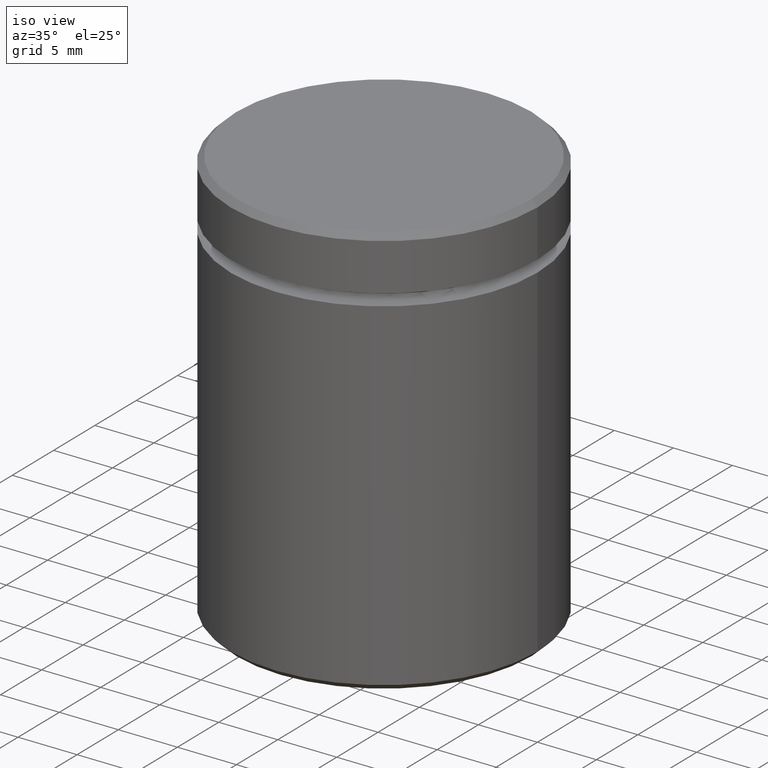
[diagram: clean part render]
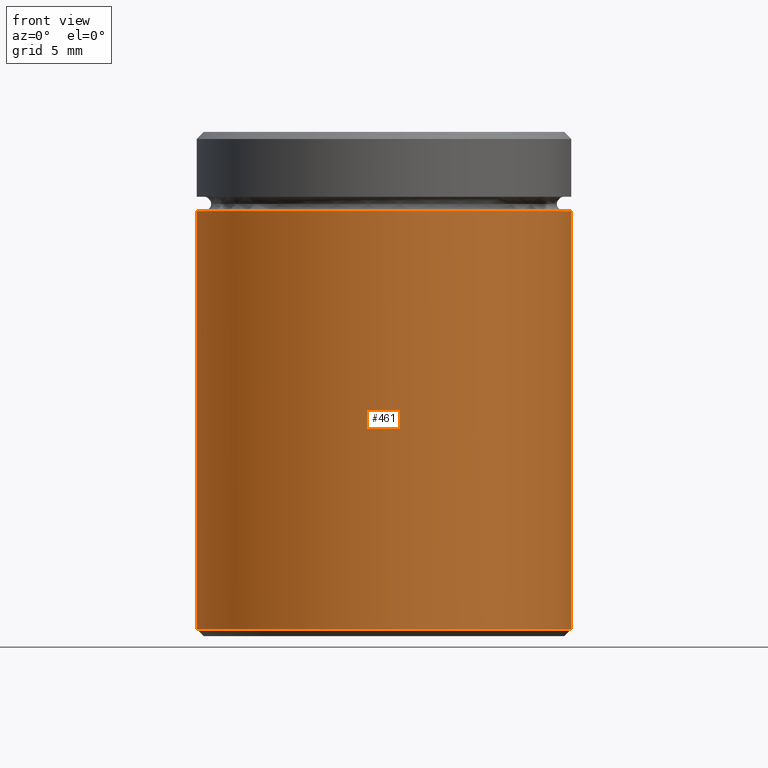
[diagram: tour spotlight — one face highlighted and labeled with its STEP entity id]
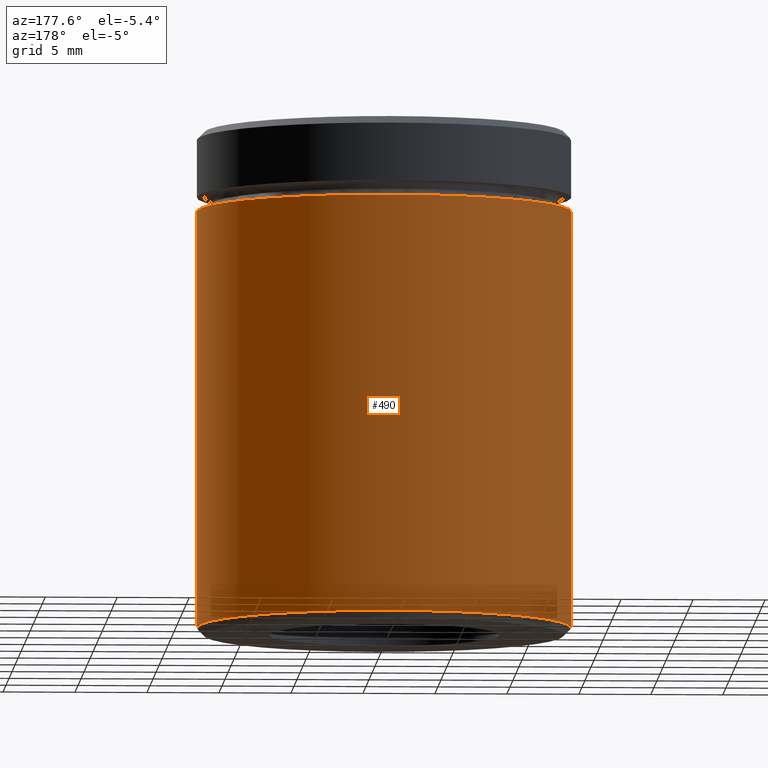
[diagram: tour spotlight — one face highlighted and labeled with its STEP entity id]
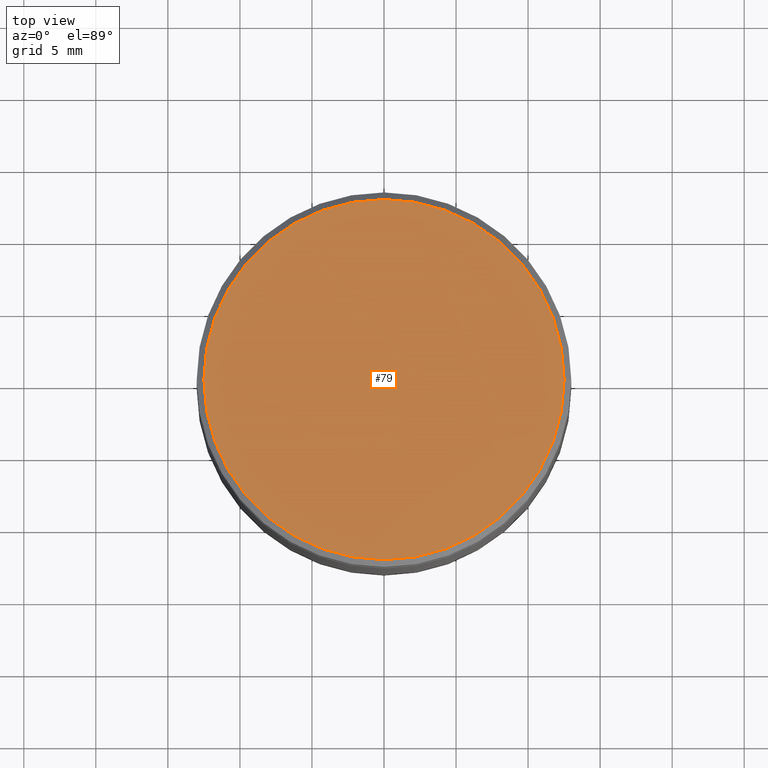
[diagram: tour spotlight — one face highlighted and labeled with its STEP entity id]
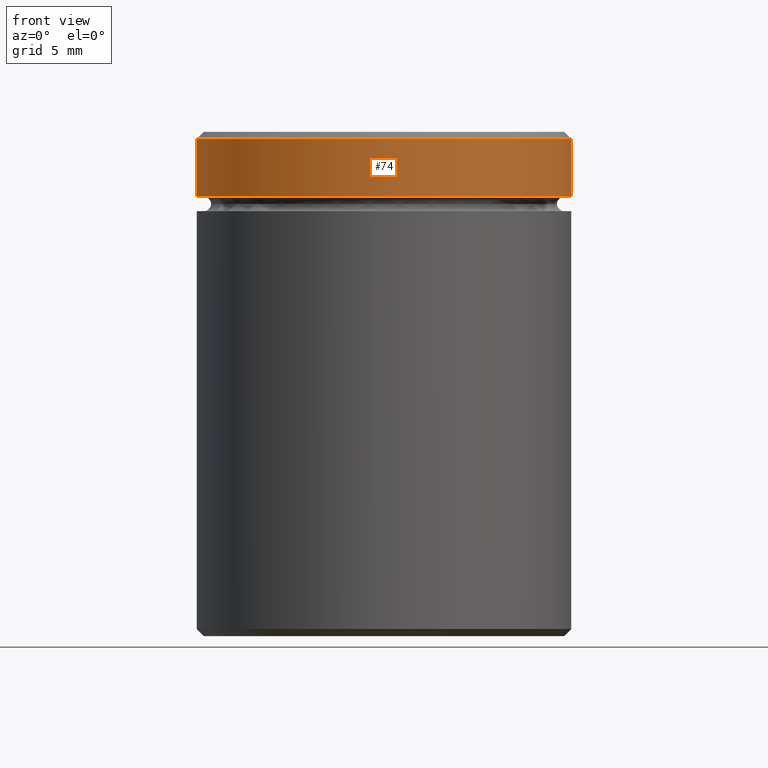
[diagram: tour spotlight — one face highlighted and labeled with its STEP entity id]
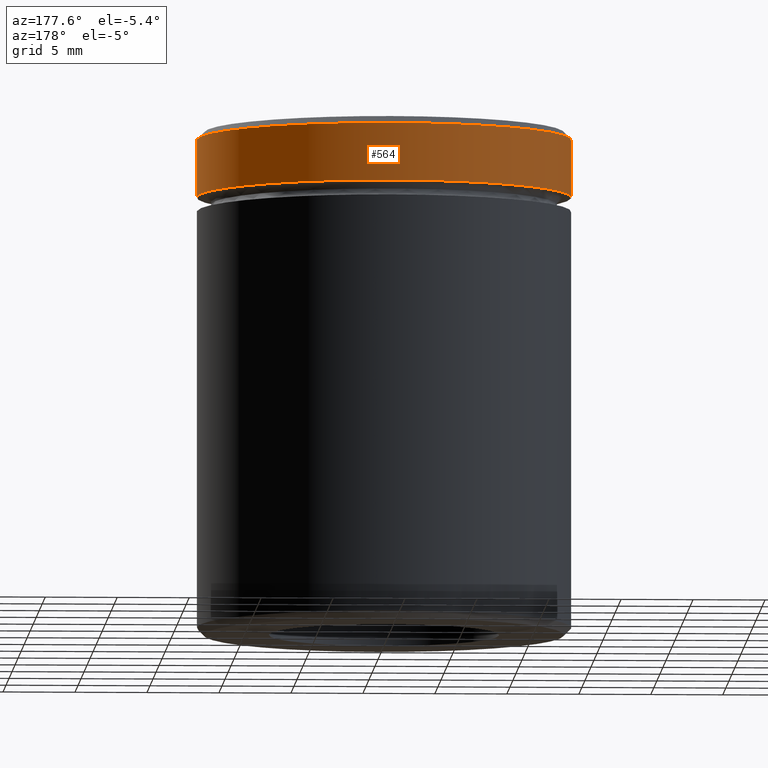
[diagram: tour spotlight — one face highlighted and labeled with its STEP entity id]
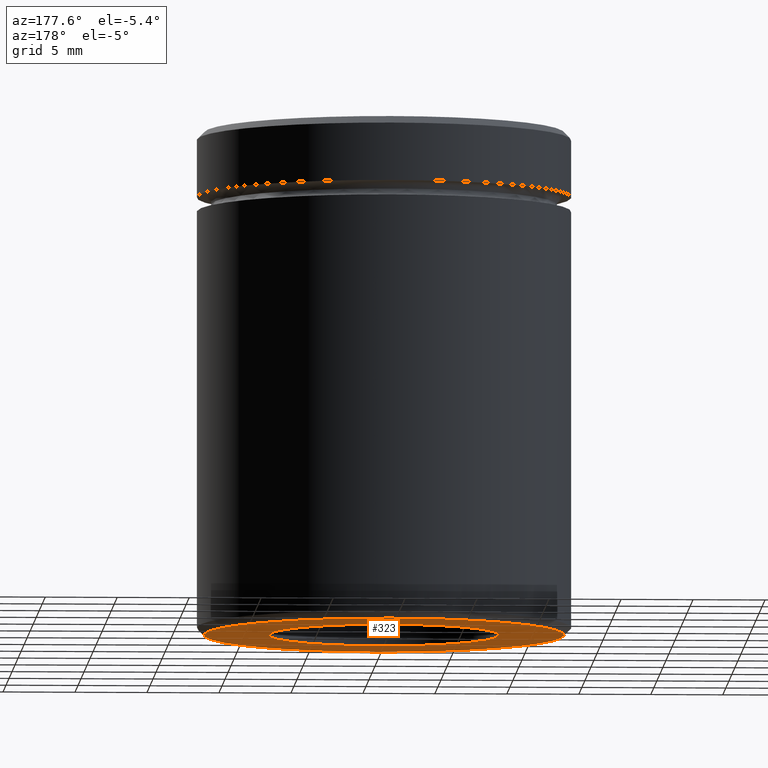
[diagram: tour spotlight — one face highlighted and labeled with its STEP entity id]
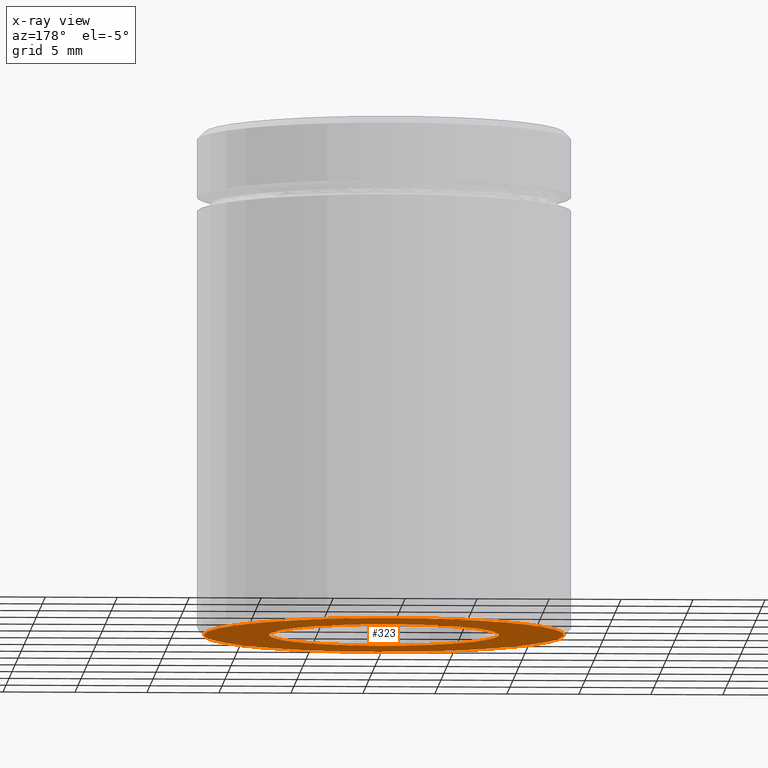
[diagram: x-ray of the same camera — body ghosted, this tour face saturated]
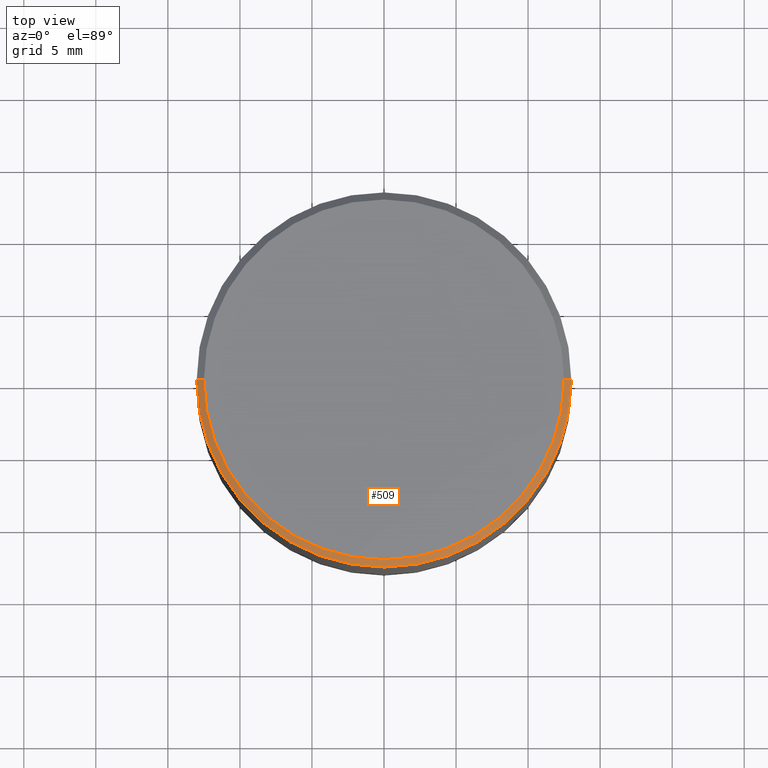
[diagram: tour spotlight — one face highlighted and labeled with its STEP entity id]
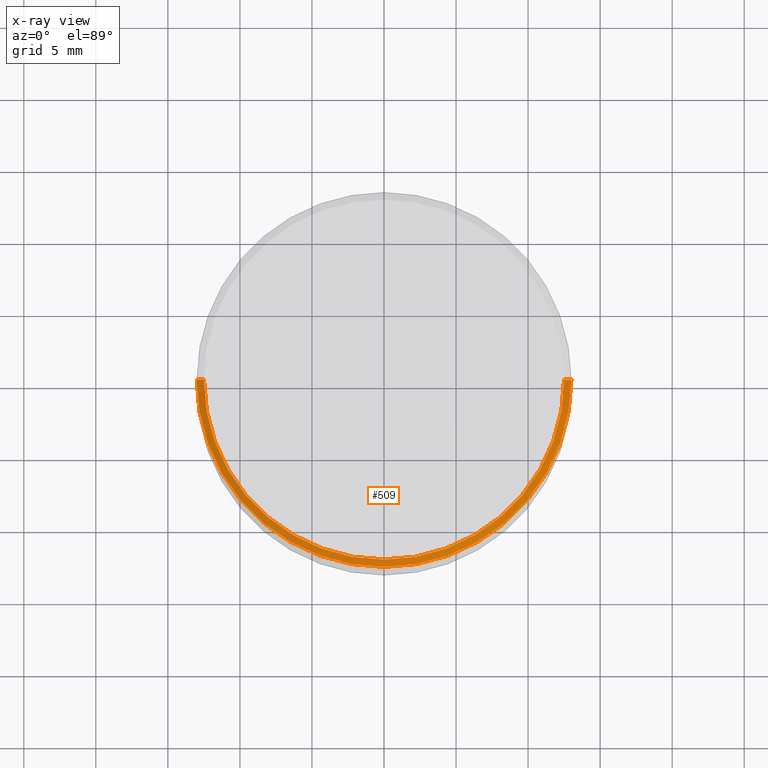
[diagram: x-ray of the same camera — body ghosted, this tour face saturated]
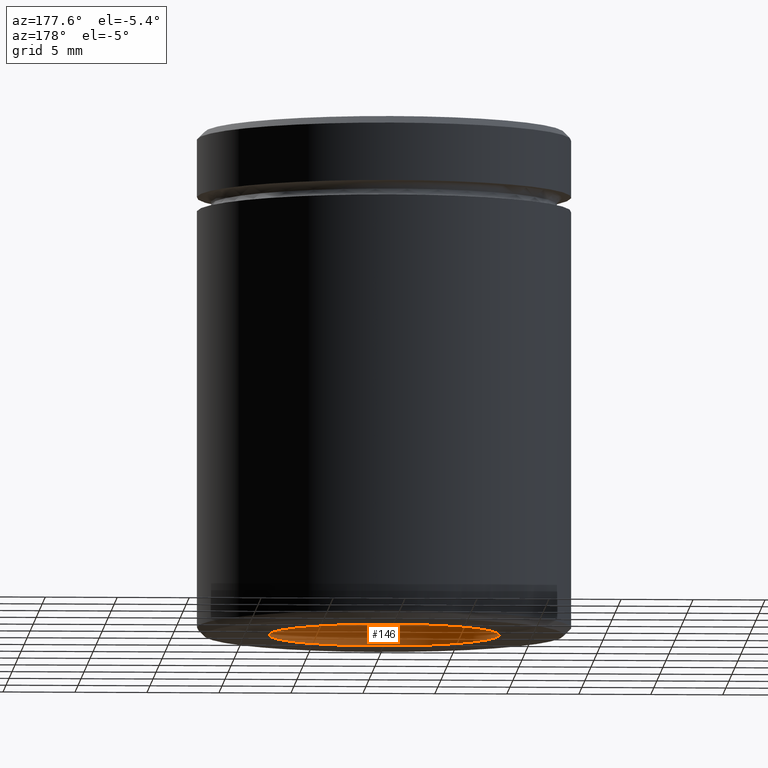
[diagram: tour spotlight — one face highlighted and labeled with its STEP entity id]
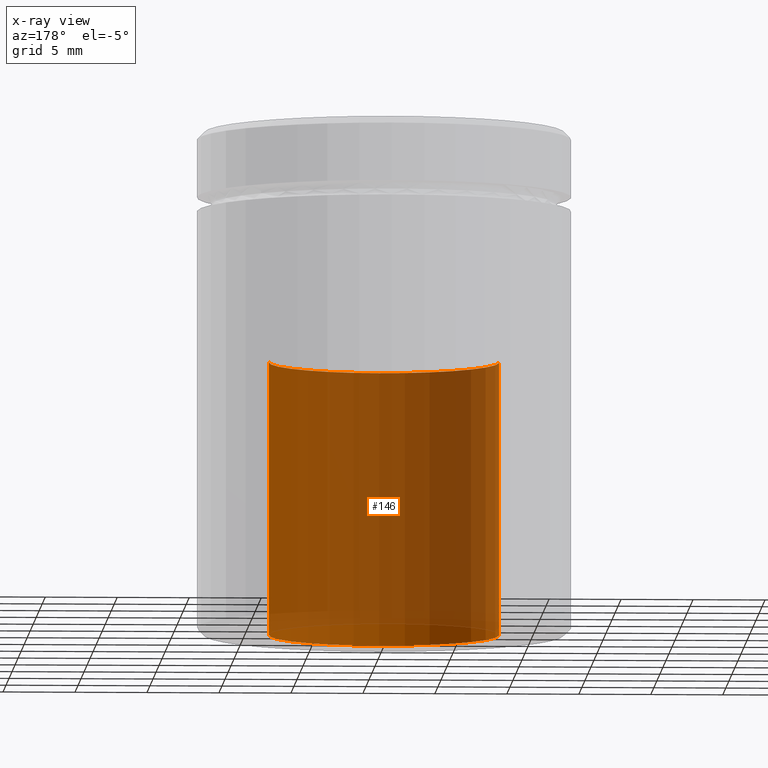
[diagram: x-ray of the same camera — body ghosted, this tour face saturated]
A machine part: a face-by-face anatomy tour. The part has 19 B-rep faces; the first image is the clean iso view, then the 8 largest visible faces are spotlighted one at a time (largest first), each with its STEP entity span.

Face 1 — front view, entity #461. In plain terms, the highlighted cylindrical surface (partial cylindrical patch) has radius 13 mm, axis along (-0, -0, 1).
Definition (entity closure, byte-faithful):
#14 = DIRECTION ( 'NONE',  ( -0.000000000000000000, -0.000000000000000000, 1.000000000000000000 ) ) ;
#18 = VERTEX_POINT ( 'NONE', #179 ) ;
#35 = CARTESIAN_POINT ( 'NONE',  ( 13.00000000000000000, 0.000000000000000000, -5.500000000000000000 ) ) ;
#37 = ORIENTED_EDGE ( 'NONE', *, *, #216, .F. ) ;
#43 = FACE_OUTER_BOUND ( 'NONE', #443, .T. ) ;
#124 = AXIS2_PLACEMENT_3D ( 'NONE', #289, #192, #152 ) ;
#129 = VECTOR ( 'NONE', #14, 1000.000000000000000 ) ;
#152 = DIRECTION ( 'NONE',  ( -1.000000000000000000, 0.000000000000000000, 0.000000000000000000 ) ) ;
#164 = CARTESIAN_POINT ( 'NONE',  ( -13.00000000000000000, 1.592040838891559095E-15, -5.500000000000000000 ) ) ;
#170 = VECTOR ( 'NONE', #300, 1000.000000000000000 ) ;
#179 = CARTESIAN_POINT ( 'NONE',  ( 13.00000000000000000, 0.000000000000000000, -34.49999999999999289 ) ) ;
#186 = LINE ( 'NONE', #455, #129 ) ;
#192 = DIRECTION ( 'NONE',  ( -0.000000000000000000, -0.000000000000000000, 1.000000000000000000 ) ) ;
#207 = ORIENTED_EDGE ( 'NONE', *, *, #333, .T. ) ;
#215 = DIRECTION ( 'NONE',  ( -0.000000000000000000, -0.000000000000000000, 1.000000000000000000 ) ) ;
#216 = EDGE_CURVE ( 'NONE', #390, #530, #425, .T. ) ;
#220 = CARTESIAN_POINT ( 'NONE',  ( 0.000000000000000000, 0.000000000000000000, -5.500000000000000000 ) ) ;
#224 = VERTEX_POINT ( 'NONE', #388 ) ;
#236 = AXIS2_PLACEMENT_3D ( 'NONE', #311, #271, #319 ) ;
#257 = EDGE_CURVE ( 'NONE', #224, #390, #430, .T. ) ;
#271 = DIRECTION ( 'NONE',  ( -0.000000000000000000, -0.000000000000000000, 1.000000000000000000 ) ) ;
#289 = CARTESIAN_POINT ( 'NONE',  ( 0.000000000000000000, 0.000000000000000000, -34.49999999999999289 ) ) ;
#299 = AXIS2_PLACEMENT_3D ( 'NONE', #220, #215, #532 ) ;
#300 = DIRECTION ( 'NONE',  ( -0.000000000000000000, -0.000000000000000000, 1.000000000000000000 ) ) ;
#311 = CARTESIAN_POINT ( 'NONE',  ( 0.000000000000000000, 0.000000000000000000, 0.000000000000000000 ) ) ;
#319 = DIRECTION ( 'NONE',  ( 1.000000000000000000, 0.000000000000000000, 0.000000000000000000 ) ) ;
#333 = EDGE_CURVE ( 'NONE', #18, #530, #186, .T. ) ;
#380 = CIRCLE ( 'NONE', #124, 13.00000000000000000 ) ;
#388 = CARTESIAN_POINT ( 'NONE',  ( -13.00000000000000000, 1.592040838891559095E-15, -34.49999999999999289 ) ) ;
#390 = VERTEX_POINT ( 'NONE', #164 ) ;
#425 = CIRCLE ( 'NONE', #299, 13.00000000000000000 ) ;
#430 = LINE ( 'NONE', #562, #170 ) ;
#443 = EDGE_LOOP ( 'NONE', ( #520, #444, #207, #37 ) ) ;
#444 = ORIENTED_EDGE ( 'NONE', *, *, #479, .T. ) ;
#452 = CYLINDRICAL_SURFACE ( 'NONE', #236, 13.00000000000000000 ) ;
#455 = CARTESIAN_POINT ( 'NONE',  ( 13.00000000000000000, 0.000000000000000000, 0.000000000000000000 ) ) ;
#461 = ADVANCED_FACE ( 'NONE', ( #43 ), #452, .T. ) ;
#479 = EDGE_CURVE ( 'NONE', #224, #18, #380, .T. ) ;
#520 = ORIENTED_EDGE ( 'NONE', *, *, #257, .F. ) ;
#530 = VERTEX_POINT ( 'NONE', #35 ) ;
#532 = DIRECTION ( 'NONE',  ( 1.000000000000000000, 0.000000000000000000, 0.000000000000000000 ) ) ;
#562 = CARTESIAN_POINT ( 'NONE',  ( -13.00000000000000000, 1.592040838891559095E-15, 0.000000000000000000 ) ) ;

Face 2 — auxiliary view, entity #490. In plain terms, the highlighted cylindrical surface (partial cylindrical patch) has radius 13 mm, axis along (-0, -0, 1).
Definition (entity closure, byte-faithful):
#14 = DIRECTION ( 'NONE',  ( -0.000000000000000000, -0.000000000000000000, 1.000000000000000000 ) ) ;
#18 = VERTEX_POINT ( 'NONE', #179 ) ;
#35 = CARTESIAN_POINT ( 'NONE',  ( 13.00000000000000000, 0.000000000000000000, -5.500000000000000000 ) ) ;
#36 = DIRECTION ( 'NONE',  ( 1.000000000000000000, 0.000000000000000000, 0.000000000000000000 ) ) ;
#46 = CARTESIAN_POINT ( 'NONE',  ( 0.000000000000000000, 0.000000000000000000, -34.49999999999999289 ) ) ;
#50 = ORIENTED_EDGE ( 'NONE', *, *, #333, .F. ) ;
#91 = CIRCLE ( 'NONE', #436, 13.00000000000000000 ) ;
#96 = DIRECTION ( 'NONE',  ( -1.000000000000000000, 0.000000000000000000, 0.000000000000000000 ) ) ;
#105 = CYLINDRICAL_SURFACE ( 'NONE', #426, 13.00000000000000000 ) ;
#117 = ORIENTED_EDGE ( 'NONE', *, *, #257, .T. ) ;
#126 = FACE_OUTER_BOUND ( 'NONE', #128, .T. ) ;
#128 = EDGE_LOOP ( 'NONE', ( #190, #117, #399, #50 ) ) ;
#129 = VECTOR ( 'NONE', #14, 1000.000000000000000 ) ;
#144 = EDGE_CURVE ( 'NONE', #18, #224, #502, .T. ) ;
#164 = CARTESIAN_POINT ( 'NONE',  ( -13.00000000000000000, 1.592040838891559095E-15, -5.500000000000000000 ) ) ;
#170 = VECTOR ( 'NONE', #300, 1000.000000000000000 ) ;
#179 = CARTESIAN_POINT ( 'NONE',  ( 13.00000000000000000, 0.000000000000000000, -34.49999999999999289 ) ) ;
#186 = LINE ( 'NONE', #455, #129 ) ;
#190 = ORIENTED_EDGE ( 'NONE', *, *, #144, .T. ) ;
#221 = DIRECTION ( 'NONE',  ( -0.000000000000000000, -0.000000000000000000, 1.000000000000000000 ) ) ;
#224 = VERTEX_POINT ( 'NONE', #388 ) ;
#257 = EDGE_CURVE ( 'NONE', #224, #390, #430, .T. ) ;
#275 = CARTESIAN_POINT ( 'NONE',  ( 0.000000000000000000, 0.000000000000000000, 0.000000000000000000 ) ) ;
#300 = DIRECTION ( 'NONE',  ( -0.000000000000000000, -0.000000000000000000, 1.000000000000000000 ) ) ;
#333 = EDGE_CURVE ( 'NONE', #18, #530, #186, .T. ) ;
#338 = CARTESIAN_POINT ( 'NONE',  ( 0.000000000000000000, 0.000000000000000000, -5.500000000000000000 ) ) ;
#341 = DIRECTION ( 'NONE',  ( -0.000000000000000000, -0.000000000000000000, 1.000000000000000000 ) ) ;
#365 = AXIS2_PLACEMENT_3D ( 'NONE', #46, #221, #96 ) ;
#388 = CARTESIAN_POINT ( 'NONE',  ( -13.00000000000000000, 1.592040838891559095E-15, -34.49999999999999289 ) ) ;
#390 = VERTEX_POINT ( 'NONE', #164 ) ;
#399 = ORIENTED_EDGE ( 'NONE', *, *, #542, .F. ) ;
#426 = AXIS2_PLACEMENT_3D ( 'NONE', #275, #341, #508 ) ;
#430 = LINE ( 'NONE', #562, #170 ) ;
#436 = AXIS2_PLACEMENT_3D ( 'NONE', #338, #556, #36 ) ;
#455 = CARTESIAN_POINT ( 'NONE',  ( 13.00000000000000000, 0.000000000000000000, 0.000000000000000000 ) ) ;
#490 = ADVANCED_FACE ( 'NONE', ( #126 ), #105, .T. ) ;
#502 = CIRCLE ( 'NONE', #365, 13.00000000000000000 ) ;
#508 = DIRECTION ( 'NONE',  ( 1.000000000000000000, 0.000000000000000000, 0.000000000000000000 ) ) ;
#530 = VERTEX_POINT ( 'NONE', #35 ) ;
#542 = EDGE_CURVE ( 'NONE', #530, #390, #91, .T. ) ;
#556 = DIRECTION ( 'NONE',  ( -0.000000000000000000, -0.000000000000000000, 1.000000000000000000 ) ) ;
#562 = CARTESIAN_POINT ( 'NONE',  ( -13.00000000000000000, 1.592040838891559095E-15, 0.000000000000000000 ) ) ;

Face 3 — top view, entity #79. In plain terms, the highlighted planar face has unit normal (0, -0, 1).
Definition (entity closure, byte-faithful):
#4 = DIRECTION ( 'NONE',  ( -0.000000000000000000, -0.000000000000000000, 1.000000000000000000 ) ) ;
#34 = CIRCLE ( 'NONE', #258, 12.49999999999999112 ) ;
#38 = DIRECTION ( 'NONE',  ( 1.000000000000000000, 0.000000000000000000, 0.000000000000000000 ) ) ;
#41 = ORIENTED_EDGE ( 'NONE', *, *, #312, .T. ) ;
#66 = AXIS2_PLACEMENT_3D ( 'NONE', #242, #317, #545 ) ;
#79 = ADVANCED_FACE ( 'NONE', ( #115 ), #360, .T. ) ;
#95 = CARTESIAN_POINT ( 'NONE',  ( 0.000000000000000000, 0.000000000000000000, 0.000000000000000000 ) ) ;
#104 = DIRECTION ( 'NONE',  ( -0.000000000000000000, -0.000000000000000000, 1.000000000000000000 ) ) ;
#115 = FACE_OUTER_BOUND ( 'NONE', #301, .T. ) ;
#173 = VERTEX_POINT ( 'NONE', #320 ) ;
#210 = EDGE_CURVE ( 'NONE', #536, #173, #34, .T. ) ;
#242 = CARTESIAN_POINT ( 'NONE',  ( 0.000000000000000000, 0.000000000000000000, 0.000000000000000000 ) ) ;
#258 = AXIS2_PLACEMENT_3D ( 'NONE', #406, #4, #38 ) ;
#301 = EDGE_LOOP ( 'NONE', ( #41, #473 ) ) ;
#312 = EDGE_CURVE ( 'NONE', #173, #536, #491, .T. ) ;
#317 = DIRECTION ( 'NONE',  ( 0.000000000000000000, -0.000000000000000000, 1.000000000000000000 ) ) ;
#320 = CARTESIAN_POINT ( 'NONE',  ( -12.49999999999999112, 0.000000000000000000, 0.000000000000000000 ) ) ;
#360 = PLANE ( 'NONE',  #66 ) ;
#396 = AXIS2_PLACEMENT_3D ( 'NONE', #95, #104, #442 ) ;
#406 = CARTESIAN_POINT ( 'NONE',  ( 0.000000000000000000, 0.000000000000000000, 0.000000000000000000 ) ) ;
#442 = DIRECTION ( 'NONE',  ( 1.000000000000000000, 0.000000000000000000, 0.000000000000000000 ) ) ;
#473 = ORIENTED_EDGE ( 'NONE', *, *, #210, .T. ) ;
#491 = CIRCLE ( 'NONE', #396, 12.49999999999999112 ) ;
#536 = VERTEX_POINT ( 'NONE', #561 ) ;
#545 = DIRECTION ( 'NONE',  ( 1.000000000000000000, 0.000000000000000000, 0.000000000000000000 ) ) ;
#561 = CARTESIAN_POINT ( 'NONE',  ( 12.49999999999999112, 1.561424668912874519E-15, 0.000000000000000000 ) ) ;

Face 4 — front view, entity #74. In plain terms, the highlighted cylindrical surface (partial cylindrical patch) has radius 13 mm, axis along (-0, -0, 1).
Definition (entity closure, byte-faithful):
#28 = CARTESIAN_POINT ( 'NONE',  ( -13.00000000000000000, 1.592040838891559095E-15, 0.000000000000000000 ) ) ;
#39 = CIRCLE ( 'NONE', #266, 13.00000000000000000 ) ;
#64 = LINE ( 'NONE', #188, #432 ) ;
#73 = DIRECTION ( 'NONE',  ( 1.000000000000000000, 0.000000000000000000, 0.000000000000000000 ) ) ;
#74 = ADVANCED_FACE ( 'NONE', ( #228 ), #87, .T. ) ;
#87 = CYLINDRICAL_SURFACE ( 'NONE', #178, 13.00000000000000000 ) ;
#100 = VECTOR ( 'NONE', #407, 1000.000000000000000 ) ;
#107 = CARTESIAN_POINT ( 'NONE',  ( 13.00000000000000000, 0.000000000000000000, -0.5000000000000073275 ) ) ;
#108 = VERTEX_POINT ( 'NONE', #403 ) ;
#132 = CARTESIAN_POINT ( 'NONE',  ( 0.000000000000000000, 0.000000000000000000, -0.5000000000000073275 ) ) ;
#136 = EDGE_CURVE ( 'NONE', #295, #196, #394, .T. ) ;
#137 = CARTESIAN_POINT ( 'NONE',  ( 0.000000000000000000, 0.000000000000000000, 0.000000000000000000 ) ) ;
#160 = DIRECTION ( 'NONE',  ( -0.000000000000000000, -0.000000000000000000, 1.000000000000000000 ) ) ;
#178 = AXIS2_PLACEMENT_3D ( 'NONE', #137, #160, #369 ) ;
#182 = ORIENTED_EDGE ( 'NONE', *, *, #411, .F. ) ;
#188 = CARTESIAN_POINT ( 'NONE',  ( 13.00000000000000000, 0.000000000000000000, 0.000000000000000000 ) ) ;
#195 = ORIENTED_EDGE ( 'NONE', *, *, #342, .T. ) ;
#196 = VERTEX_POINT ( 'NONE', #286 ) ;
#228 = FACE_OUTER_BOUND ( 'NONE', #451, .T. ) ;
#246 = DIRECTION ( 'NONE',  ( -0.000000000000000000, -0.000000000000000000, 1.000000000000000000 ) ) ;
#250 = LINE ( 'NONE', #28, #100 ) ;
#266 = AXIS2_PLACEMENT_3D ( 'NONE', #464, #500, #73 ) ;
#268 = DIRECTION ( 'NONE',  ( 1.000000000000000000, 0.000000000000000000, 0.000000000000000000 ) ) ;
#286 = CARTESIAN_POINT ( 'NONE',  ( -13.00000000000000000, 1.592040838891559095E-15, -0.5000000000000073275 ) ) ;
#295 = VERTEX_POINT ( 'NONE', #107 ) ;
#310 = ORIENTED_EDGE ( 'NONE', *, *, #136, .T. ) ;
#342 = EDGE_CURVE ( 'NONE', #457, #295, #64, .T. ) ;
#369 = DIRECTION ( 'NONE',  ( 1.000000000000000000, 0.000000000000000000, 0.000000000000000000 ) ) ;
#393 = CARTESIAN_POINT ( 'NONE',  ( 13.00000000000000000, 0.000000000000000000, -4.500000000000000888 ) ) ;
#394 = CIRCLE ( 'NONE', #460, 13.00000000000000000 ) ;
#403 = CARTESIAN_POINT ( 'NONE',  ( -13.00000000000000000, 1.592040838891559095E-15, -4.500000000000000888 ) ) ;
#407 = DIRECTION ( 'NONE',  ( -0.000000000000000000, -0.000000000000000000, 1.000000000000000000 ) ) ;
#408 = ORIENTED_EDGE ( 'NONE', *, *, #438, .T. ) ;
#411 = EDGE_CURVE ( 'NONE', #108, #196, #250, .T. ) ;
#432 = VECTOR ( 'NONE', #246, 1000.000000000000000 ) ;
#438 = EDGE_CURVE ( 'NONE', #108, #457, #39, .T. ) ;
#451 = EDGE_LOOP ( 'NONE', ( #182, #408, #195, #310 ) ) ;
#457 = VERTEX_POINT ( 'NONE', #393 ) ;
#460 = AXIS2_PLACEMENT_3D ( 'NONE', #132, #523, #268 ) ;
#464 = CARTESIAN_POINT ( 'NONE',  ( 0.000000000000000000, 0.000000000000000000, -4.500000000000000888 ) ) ;
#500 = DIRECTION ( 'NONE',  ( -0.000000000000000000, -0.000000000000000000, 1.000000000000000000 ) ) ;
#523 = DIRECTION ( 'NONE',  ( 0.000000000000000000, 0.000000000000000000, -1.000000000000000000 ) ) ;

Face 5 — auxiliary view, entity #564. In plain terms, the highlighted cylindrical surface (partial cylindrical patch) has radius 13 mm, axis along (-0, -0, 1).
Definition (entity closure, byte-faithful):
#22 = EDGE_LOOP ( 'NONE', ( #276, #222, #307, #68 ) ) ;
#28 = CARTESIAN_POINT ( 'NONE',  ( -13.00000000000000000, 1.592040838891559095E-15, 0.000000000000000000 ) ) ;
#30 = CYLINDRICAL_SURFACE ( 'NONE', #281, 13.00000000000000000 ) ;
#31 = CARTESIAN_POINT ( 'NONE',  ( 0.000000000000000000, 0.000000000000000000, -0.5000000000000073275 ) ) ;
#32 = EDGE_CURVE ( 'NONE', #457, #108, #316, .T. ) ;
#64 = LINE ( 'NONE', #188, #432 ) ;
#68 = ORIENTED_EDGE ( 'NONE', *, *, #342, .F. ) ;
#78 = DIRECTION ( 'NONE',  ( -0.000000000000000000, -0.000000000000000000, 1.000000000000000000 ) ) ;
#100 = VECTOR ( 'NONE', #407, 1000.000000000000000 ) ;
#107 = CARTESIAN_POINT ( 'NONE',  ( 13.00000000000000000, 0.000000000000000000, -0.5000000000000073275 ) ) ;
#108 = VERTEX_POINT ( 'NONE', #403 ) ;
#188 = CARTESIAN_POINT ( 'NONE',  ( 13.00000000000000000, 0.000000000000000000, 0.000000000000000000 ) ) ;
#196 = VERTEX_POINT ( 'NONE', #286 ) ;
#202 = DIRECTION ( 'NONE',  ( 1.000000000000000000, 0.000000000000000000, 0.000000000000000000 ) ) ;
#203 = AXIS2_PLACEMENT_3D ( 'NONE', #309, #488, #353 ) ;
#222 = ORIENTED_EDGE ( 'NONE', *, *, #411, .T. ) ;
#246 = DIRECTION ( 'NONE',  ( -0.000000000000000000, -0.000000000000000000, 1.000000000000000000 ) ) ;
#250 = LINE ( 'NONE', #28, #100 ) ;
#276 = ORIENTED_EDGE ( 'NONE', *, *, #32, .T. ) ;
#281 = AXIS2_PLACEMENT_3D ( 'NONE', #339, #78, #418 ) ;
#286 = CARTESIAN_POINT ( 'NONE',  ( -13.00000000000000000, 1.592040838891559095E-15, -0.5000000000000073275 ) ) ;
#295 = VERTEX_POINT ( 'NONE', #107 ) ;
#307 = ORIENTED_EDGE ( 'NONE', *, *, #378, .T. ) ;
#309 = CARTESIAN_POINT ( 'NONE',  ( 0.000000000000000000, 0.000000000000000000, -4.500000000000000888 ) ) ;
#316 = CIRCLE ( 'NONE', #203, 13.00000000000000000 ) ;
#318 = AXIS2_PLACEMENT_3D ( 'NONE', #31, #465, #202 ) ;
#339 = CARTESIAN_POINT ( 'NONE',  ( 0.000000000000000000, 0.000000000000000000, 0.000000000000000000 ) ) ;
#342 = EDGE_CURVE ( 'NONE', #457, #295, #64, .T. ) ;
#353 = DIRECTION ( 'NONE',  ( 1.000000000000000000, 0.000000000000000000, 0.000000000000000000 ) ) ;
#378 = EDGE_CURVE ( 'NONE', #196, #295, #447, .T. ) ;
#393 = CARTESIAN_POINT ( 'NONE',  ( 13.00000000000000000, 0.000000000000000000, -4.500000000000000888 ) ) ;
#403 = CARTESIAN_POINT ( 'NONE',  ( -13.00000000000000000, 1.592040838891559095E-15, -4.500000000000000888 ) ) ;
#407 = DIRECTION ( 'NONE',  ( -0.000000000000000000, -0.000000000000000000, 1.000000000000000000 ) ) ;
#411 = EDGE_CURVE ( 'NONE', #108, #196, #250, .T. ) ;
#418 = DIRECTION ( 'NONE',  ( 1.000000000000000000, 0.000000000000000000, 0.000000000000000000 ) ) ;
#420 = FACE_OUTER_BOUND ( 'NONE', #22, .T. ) ;
#432 = VECTOR ( 'NONE', #246, 1000.000000000000000 ) ;
#447 = CIRCLE ( 'NONE', #318, 13.00000000000000000 ) ;
#457 = VERTEX_POINT ( 'NONE', #393 ) ;
#465 = DIRECTION ( 'NONE',  ( 0.000000000000000000, 0.000000000000000000, -1.000000000000000000 ) ) ;
#488 = DIRECTION ( 'NONE',  ( -0.000000000000000000, -0.000000000000000000, 1.000000000000000000 ) ) ;
#564 = ADVANCED_FACE ( 'NONE', ( #420 ), #30, .T. ) ;

Face 6 — auxiliary view, entity #323. An x-ray twin of the same camera follows (body ghosted, this face saturated) — the face is partly hidden behind the body. In plain terms, the highlighted planar face has unit normal (0, 0, -1).
Definition (entity closure, byte-faithful):
#10 = VERTEX_POINT ( 'NONE', #47 ) ;
#21 = DIRECTION ( 'NONE',  ( -1.000000000000000000, 0.000000000000000000, 0.000000000000000000 ) ) ;
#24 = CARTESIAN_POINT ( 'NONE',  ( 0.000000000000000000, 0.000000000000000000, -35.00000000000000000 ) ) ;
#25 = ORIENTED_EDGE ( 'NONE', *, *, #86, .T. ) ;
#40 = CIRCLE ( 'NONE', #504, 8.000000000000000000 ) ;
#47 = CARTESIAN_POINT ( 'NONE',  ( 8.000000000000000000, 9.797174393178825657E-16, -35.00000000000000000 ) ) ;
#52 = PLANE ( 'NONE',  #110 ) ;
#76 = AXIS2_PLACEMENT_3D ( 'NONE', #24, #149, #21 ) ;
#86 = EDGE_CURVE ( 'NONE', #172, #133, #379, .T. ) ;
#90 = CIRCLE ( 'NONE', #409, 12.49999999999999112 ) ;
#99 = DIRECTION ( 'NONE',  ( -1.000000000000000000, 0.000000000000000000, 0.000000000000000000 ) ) ;
#101 = DIRECTION ( 'NONE',  ( -1.000000000000000000, 0.000000000000000000, 0.000000000000000000 ) ) ;
#110 = AXIS2_PLACEMENT_3D ( 'NONE', #183, #315, #395 ) ;
#112 = DIRECTION ( 'NONE',  ( 0.000000000000000000, 0.000000000000000000, -1.000000000000000000 ) ) ;
#133 = VERTEX_POINT ( 'NONE', #213 ) ;
#134 = CARTESIAN_POINT ( 'NONE',  ( -8.000000000000000000, 0.000000000000000000, -35.00000000000000000 ) ) ;
#149 = DIRECTION ( 'NONE',  ( 0.000000000000000000, 0.000000000000000000, -1.000000000000000000 ) ) ;
#172 = VERTEX_POINT ( 'NONE', #402 ) ;
#183 = CARTESIAN_POINT ( 'NONE',  ( 0.000000000000000000, 13.00000000000000000, -35.00000000000000000 ) ) ;
#185 = EDGE_LOOP ( 'NONE', ( #25, #560 ) ) ;
#213 = CARTESIAN_POINT ( 'NONE',  ( -12.49999999999999112, 1.561424668912874519E-15, -35.00000000000000000 ) ) ;
#214 = CIRCLE ( 'NONE', #76, 8.000000000000000000 ) ;
#232 = FACE_BOUND ( 'NONE', #496, .T. ) ;
#233 = VERTEX_POINT ( 'NONE', #134 ) ;
#253 = DIRECTION ( 'NONE',  ( 0.000000000000000000, 0.000000000000000000, -1.000000000000000000 ) ) ;
#263 = DIRECTION ( 'NONE',  ( 0.000000000000000000, 0.000000000000000000, -1.000000000000000000 ) ) ;
#265 = ORIENTED_EDGE ( 'NONE', *, *, #510, .F. ) ;
#273 = FACE_OUTER_BOUND ( 'NONE', #185, .T. ) ;
#315 = DIRECTION ( 'NONE',  ( 0.000000000000000000, 0.000000000000000000, -1.000000000000000000 ) ) ;
#323 = ADVANCED_FACE ( 'NONE', ( #273, #232 ), #52, .T. ) ;
#343 = ORIENTED_EDGE ( 'NONE', *, *, #419, .F. ) ;
#379 = CIRCLE ( 'NONE', #501, 12.49999999999999112 ) ;
#395 = DIRECTION ( 'NONE',  ( -1.000000000000000000, 0.000000000000000000, -0.000000000000000000 ) ) ;
#402 = CARTESIAN_POINT ( 'NONE',  ( 12.49999999999999112, 0.000000000000000000, -35.00000000000000000 ) ) ;
#409 = AXIS2_PLACEMENT_3D ( 'NONE', #458, #263, #99 ) ;
#419 = EDGE_CURVE ( 'NONE', #233, #10, #214, .T. ) ;
#454 = EDGE_CURVE ( 'NONE', #133, #172, #90, .T. ) ;
#458 = CARTESIAN_POINT ( 'NONE',  ( 0.000000000000000000, 0.000000000000000000, -35.00000000000000000 ) ) ;
#471 = DIRECTION ( 'NONE',  ( -1.000000000000000000, 0.000000000000000000, 0.000000000000000000 ) ) ;
#475 = CARTESIAN_POINT ( 'NONE',  ( 0.000000000000000000, 0.000000000000000000, -35.00000000000000000 ) ) ;
#496 = EDGE_LOOP ( 'NONE', ( #343, #265 ) ) ;
#501 = AXIS2_PLACEMENT_3D ( 'NONE', #503, #112, #101 ) ;
#503 = CARTESIAN_POINT ( 'NONE',  ( 0.000000000000000000, 0.000000000000000000, -35.00000000000000000 ) ) ;
#504 = AXIS2_PLACEMENT_3D ( 'NONE', #475, #253, #471 ) ;
#510 = EDGE_CURVE ( 'NONE', #10, #233, #40, .T. ) ;
#560 = ORIENTED_EDGE ( 'NONE', *, *, #454, .T. ) ;

Face 7 — top view, entity #509. An x-ray twin of the same camera follows (body ghosted, this face saturated) — the face is partly hidden behind the body. In plain terms, the highlighted conical surface has half-angle 45 deg.
Definition (entity closure, byte-faithful):
#16 = CARTESIAN_POINT ( 'NONE',  ( -12.49999999999999112, 0.000000000000000000, 0.000000000000000000 ) ) ;
#61 = EDGE_CURVE ( 'NONE', #536, #295, #415, .T. ) ;
#95 = CARTESIAN_POINT ( 'NONE',  ( 0.000000000000000000, 0.000000000000000000, 0.000000000000000000 ) ) ;
#103 = EDGE_LOOP ( 'NONE', ( #313, #400, #372, #349 ) ) ;
#104 = DIRECTION ( 'NONE',  ( -0.000000000000000000, -0.000000000000000000, 1.000000000000000000 ) ) ;
#107 = CARTESIAN_POINT ( 'NONE',  ( 13.00000000000000000, 0.000000000000000000, -0.5000000000000073275 ) ) ;
#114 = LINE ( 'NONE', #16, #386 ) ;
#118 = CARTESIAN_POINT ( 'NONE',  ( 12.49999999999999112, 1.530808498934190141E-15, 0.000000000000000000 ) ) ;
#132 = CARTESIAN_POINT ( 'NONE',  ( 0.000000000000000000, 0.000000000000000000, -0.5000000000000073275 ) ) ;
#136 = EDGE_CURVE ( 'NONE', #295, #196, #394, .T. ) ;
#145 = VECTOR ( 'NONE', #249, 1000.000000000000000 ) ;
#161 = DIRECTION ( 'NONE',  ( -1.000000000000000000, 0.000000000000000000, 0.000000000000000000 ) ) ;
#173 = VERTEX_POINT ( 'NONE', #320 ) ;
#196 = VERTEX_POINT ( 'NONE', #286 ) ;
#209 = CARTESIAN_POINT ( 'NONE',  ( 0.000000000000000000, 0.000000000000000000, 0.000000000000000000 ) ) ;
#249 = DIRECTION ( 'NONE',  ( 0.7071067811865487940, 8.659560562354950115E-17, -0.7071067811865463515 ) ) ;
#252 = FACE_OUTER_BOUND ( 'NONE', #103, .T. ) ;
#268 = DIRECTION ( 'NONE',  ( 1.000000000000000000, 0.000000000000000000, 0.000000000000000000 ) ) ;
#286 = CARTESIAN_POINT ( 'NONE',  ( -13.00000000000000000, 1.592040838891559095E-15, -0.5000000000000073275 ) ) ;
#295 = VERTEX_POINT ( 'NONE', #107 ) ;
#312 = EDGE_CURVE ( 'NONE', #173, #536, #491, .T. ) ;
#313 = ORIENTED_EDGE ( 'NONE', *, *, #61, .F. ) ;
#320 = CARTESIAN_POINT ( 'NONE',  ( -12.49999999999999112, 0.000000000000000000, 0.000000000000000000 ) ) ;
#336 = DIRECTION ( 'NONE',  ( 0.000000000000000000, 0.000000000000000000, -1.000000000000000000 ) ) ;
#349 = ORIENTED_EDGE ( 'NONE', *, *, #136, .F. ) ;
#370 = DIRECTION ( 'NONE',  ( -0.7071067811865487940, 0.000000000000000000, -0.7071067811865463515 ) ) ;
#372 = ORIENTED_EDGE ( 'NONE', *, *, #421, .T. ) ;
#375 = CONICAL_SURFACE ( 'NONE', #470, 12.49999999999999112, 0.7853981633974500554 ) ;
#386 = VECTOR ( 'NONE', #370, 1000.000000000000000 ) ;
#394 = CIRCLE ( 'NONE', #460, 13.00000000000000000 ) ;
#396 = AXIS2_PLACEMENT_3D ( 'NONE', #95, #104, #442 ) ;
#400 = ORIENTED_EDGE ( 'NONE', *, *, #312, .F. ) ;
#415 = LINE ( 'NONE', #118, #145 ) ;
#421 = EDGE_CURVE ( 'NONE', #173, #196, #114, .T. ) ;
#442 = DIRECTION ( 'NONE',  ( 1.000000000000000000, 0.000000000000000000, 0.000000000000000000 ) ) ;
#460 = AXIS2_PLACEMENT_3D ( 'NONE', #132, #523, #268 ) ;
#470 = AXIS2_PLACEMENT_3D ( 'NONE', #209, #336, #161 ) ;
#491 = CIRCLE ( 'NONE', #396, 12.49999999999999112 ) ;
#509 = ADVANCED_FACE ( 'NONE', ( #252 ), #375, .T. ) ;
#523 = DIRECTION ( 'NONE',  ( 0.000000000000000000, 0.000000000000000000, -1.000000000000000000 ) ) ;
#536 = VERTEX_POINT ( 'NONE', #561 ) ;
#561 = CARTESIAN_POINT ( 'NONE',  ( 12.49999999999999112, 1.561424668912874519E-15, 0.000000000000000000 ) ) ;

Face 8 — auxiliary view, entity #146. An x-ray twin of the same camera follows (body ghosted, this face saturated) — the face is partly hidden behind the body. In plain terms, the highlighted cylindrical surface (partial cylindrical patch) has radius 8 mm, axis along (-0, -0, -1).
Definition (entity closure, byte-faithful):
#5 = VECTOR ( 'NONE', #11, 1000.000000000000000 ) ;
#10 = VERTEX_POINT ( 'NONE', #47 ) ;
#11 = DIRECTION ( 'NONE',  ( -0.000000000000000000, -0.000000000000000000, -1.000000000000000000 ) ) ;
#13 = CARTESIAN_POINT ( 'NONE',  ( 8.000000000000000000, 9.797174393178825657E-16, -16.00000000000000355 ) ) ;
#20 = ORIENTED_EDGE ( 'NONE', *, *, #510, .T. ) ;
#40 = CIRCLE ( 'NONE', #504, 8.000000000000000000 ) ;
#47 = CARTESIAN_POINT ( 'NONE',  ( 8.000000000000000000, 9.797174393178825657E-16, -35.00000000000000000 ) ) ;
#53 = FACE_OUTER_BOUND ( 'NONE', #255, .T. ) ;
#82 = VECTOR ( 'NONE', #410, 1000.000000000000000 ) ;
#122 = CIRCLE ( 'NONE', #550, 8.000000000000000000 ) ;
#134 = CARTESIAN_POINT ( 'NONE',  ( -8.000000000000000000, 0.000000000000000000, -35.00000000000000000 ) ) ;
#139 = ORIENTED_EDGE ( 'NONE', *, *, #361, .F. ) ;
#146 = ADVANCED_FACE ( 'NONE', ( #53 ), #355, .F. ) ;
#150 = DIRECTION ( 'NONE',  ( -1.000000000000000000, 0.000000000000000000, 0.000000000000000000 ) ) ;
#157 = LINE ( 'NONE', #329, #82 ) ;
#159 = VERTEX_POINT ( 'NONE', #292 ) ;
#194 = VERTEX_POINT ( 'NONE', #13 ) ;
#233 = VERTEX_POINT ( 'NONE', #134 ) ;
#234 = ORIENTED_EDGE ( 'NONE', *, *, #326, .T. ) ;
#253 = DIRECTION ( 'NONE',  ( 0.000000000000000000, 0.000000000000000000, -1.000000000000000000 ) ) ;
#255 = EDGE_LOOP ( 'NONE', ( #139, #234, #20, #345 ) ) ;
#285 = CARTESIAN_POINT ( 'NONE',  ( 0.000000000000000000, 0.000000000000000000, -16.00000000000000355 ) ) ;
#292 = CARTESIAN_POINT ( 'NONE',  ( -8.000000000000000000, 0.000000000000000000, -16.00000000000000355 ) ) ;
#326 = EDGE_CURVE ( 'NONE', #194, #10, #354, .T. ) ;
#329 = CARTESIAN_POINT ( 'NONE',  ( -8.000000000000000000, 0.000000000000000000, -16.00000000000000355 ) ) ;
#345 = ORIENTED_EDGE ( 'NONE', *, *, #401, .F. ) ;
#354 = LINE ( 'NONE', #359, #5 ) ;
#355 = CYLINDRICAL_SURFACE ( 'NONE', #563, 8.000000000000000000 ) ;
#359 = CARTESIAN_POINT ( 'NONE',  ( 8.000000000000000000, 9.797174393178825657E-16, -16.00000000000000355 ) ) ;
#361 = EDGE_CURVE ( 'NONE', #194, #159, #122, .T. ) ;
#362 = CARTESIAN_POINT ( 'NONE',  ( 0.000000000000000000, 0.000000000000000000, -16.00000000000000355 ) ) ;
#401 = EDGE_CURVE ( 'NONE', #159, #233, #157, .T. ) ;
#405 = DIRECTION ( 'NONE',  ( 0.000000000000000000, 0.000000000000000000, -1.000000000000000000 ) ) ;
#410 = DIRECTION ( 'NONE',  ( -0.000000000000000000, -0.000000000000000000, -1.000000000000000000 ) ) ;
#471 = DIRECTION ( 'NONE',  ( -1.000000000000000000, 0.000000000000000000, 0.000000000000000000 ) ) ;
#475 = CARTESIAN_POINT ( 'NONE',  ( 0.000000000000000000, 0.000000000000000000, -35.00000000000000000 ) ) ;
#495 = DIRECTION ( 'NONE',  ( -1.000000000000000000, 0.000000000000000000, 0.000000000000000000 ) ) ;
#504 = AXIS2_PLACEMENT_3D ( 'NONE', #475, #253, #471 ) ;
#510 = EDGE_CURVE ( 'NONE', #10, #233, #40, .T. ) ;
#540 = DIRECTION ( 'NONE',  ( -0.000000000000000000, -0.000000000000000000, -1.000000000000000000 ) ) ;
#550 = AXIS2_PLACEMENT_3D ( 'NONE', #285, #405, #495 ) ;
#563 = AXIS2_PLACEMENT_3D ( 'NONE', #362, #540, #150 ) ;